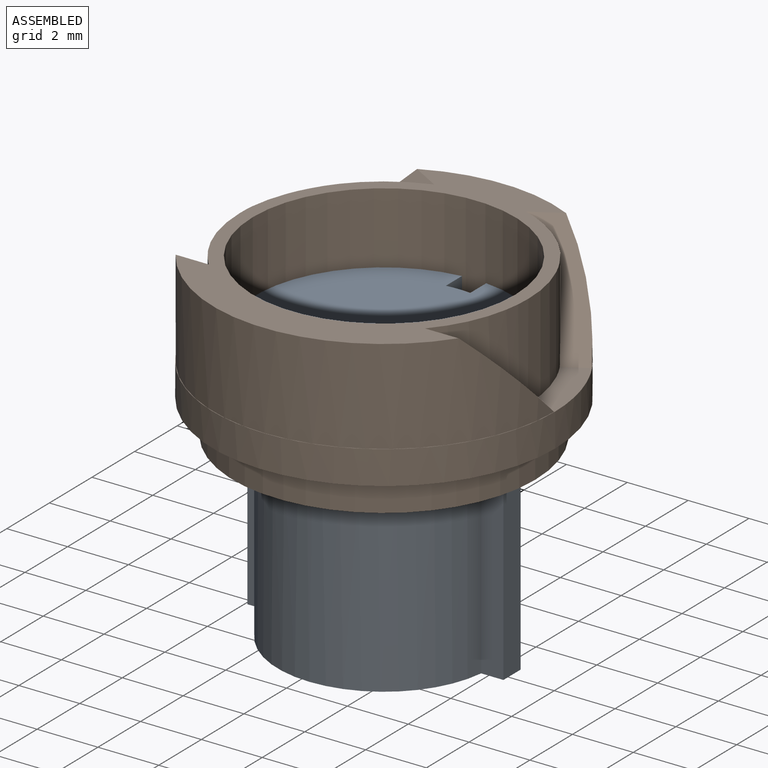
[diagram: assembled view]
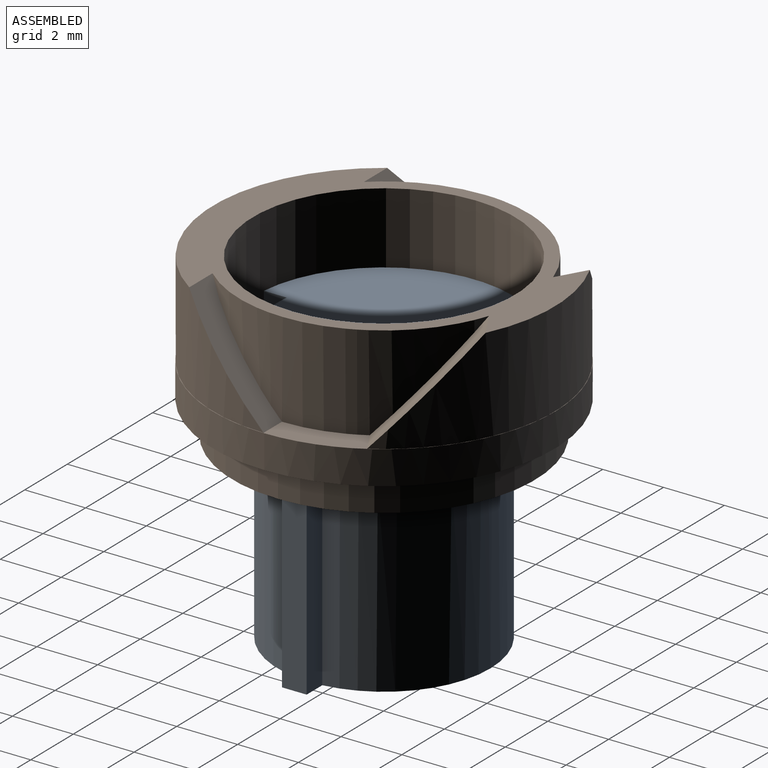
[diagram: assembled view, second angle]
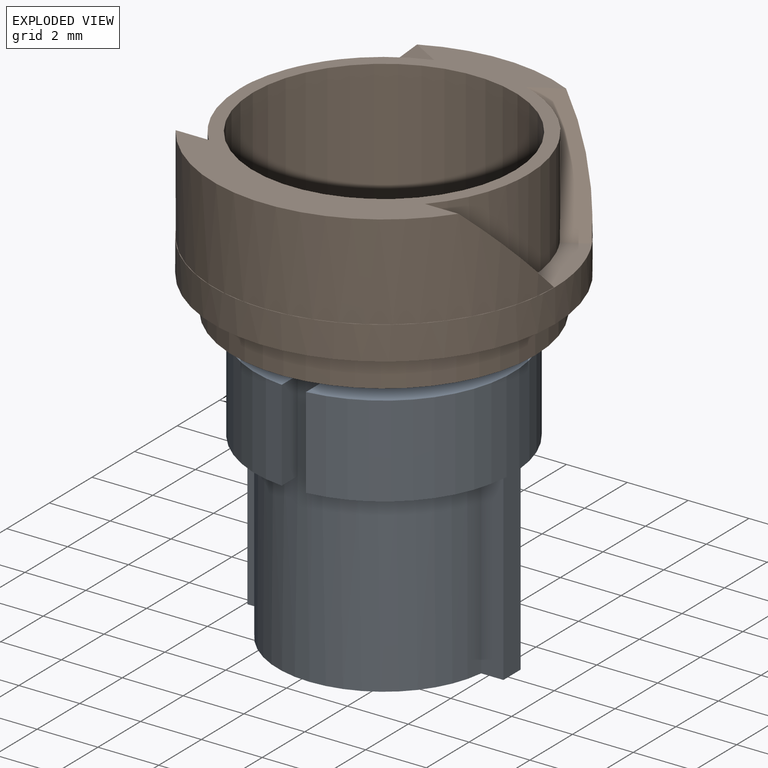
[diagram: exploded view]
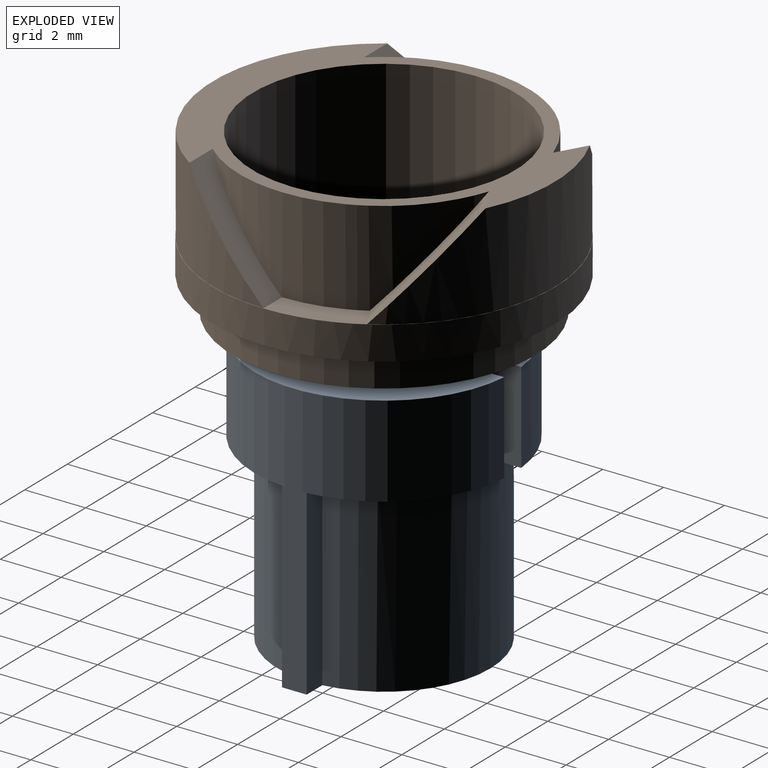
[diagram: exploded view, second angle]
ASSEMBLY  parts=2 mates=2
PART A: 18 faces, bbox 8.5x8.5x9 mm
  f0: plane 8.46x3.85mm, normal (0,0,1), area 7.9mm2, adj f1,f3,f6,f8,f11,f15,f16,f17
  f1: cylinder r=3.5mm len=9mm, axis (0,0,-1), area 63.5mm2, adj f0,f2,f5,f7,f8,f9,f12,f15
  f2: plane 8.46x3.85mm, normal (0,0,1), area 7.9mm2, adj f1,f4,f6,f9,f10,f12,f13,f14
  f3: cylinder r=4.25mm len=8.46mm, axis (0,0,-1), area 37.7mm2, adj f0,f5,f8,f11
  f4: cylinder r=4.25mm len=8.46mm, axis (0,0,-1), area 37.7mm2, adj f2,f5,f9,f10
  f5: plane 8.5x8.46mm, normal (0,0,-1), area 55.5mm2, adj f1,f3,f4,f6,f8,f9,f10,f11
  f6: cylinder r=3.5mm len=9mm, axis (0,0,-1), area 63.5mm2, adj f0,f2,f5,f7,f10,f11,f13,f16
  f7: plane 8.42x7mm, normal (0,0,1), area 39.6mm2, adj f1,f6,f12,f13,f14,f15,f16,f17
  f8: plane 3x0.75mm, normal (0,-1,0), area 2.3mm2, adj f0,f1,f3,f5
  f9: plane 3x0.75mm, normal (0,1,0), area 2.3mm2, adj f1,f2,f4,f5
  f10: plane 3x0.75mm, normal (0,1,0), area 2.3mm2, adj f2,f4,f5,f6
  f11: plane 3x0.75mm, normal (0,-1,0), area 2.3mm2, adj f0,f3,f5,f6
  f12: plane 6x0.73mm, normal (-1,0,0), area 4.4mm2, adj f1,f2,f7,f14
  f13: plane 6x0.73mm, normal (1,0,0), area 4.4mm2, adj f2,f6,f7,f14
  f14: plane 6x0.81mm, normal (0,-1,0), area 4.9mm2, adj f2,f7,f12,f13
  f15: plane 6x0.73mm, normal (-1,0,0), area 4.4mm2, adj f0,f1,f7,f17
  f16: plane 6x0.73mm, normal (1,0,0), area 4.4mm2, adj f0,f6,f7,f17
  f17: plane 6x0.81mm, normal (0,1,0), area 4.9mm2, adj f0,f7,f15,f16
PART B: 17 faces, bbox 11.4x11.4x5.5 mm
  f0: cylinder r=4.75mm len=7.66mm, axis (0,0,-1), area 18.1mm2, adj f1,f4,f13,f16
  f1: plane 11.26x11.26mm, normal (0,0,1), area 5.2mm2, adj f0,f2,f6,f11,f12,f13,f14,f15
  f2: cylinder r=4.75mm len=7.66mm, axis (0,0,-1), area 18.1mm2, adj f1,f4,f14,f15
  f3: cylinder r=4.32mm len=8.63mm, axis (0,0,-1), area 114.4mm2, adj f4,f10
  f4: plane 11.26x9.68mm, normal (0,0,1), area 24.2mm2, adj f0,f2,f3,f11,f12,f13,f14,f15
  f5: plane 11.25x11.25mm, normal (0,0,-1), area 21.6mm2, adj f6,f8
  f6: cylinder r=5.62mm len=11.25mm, axis (0,0,-1), area 38.9mm2, adj f1,f5
  f7: cylinder r=4.3mm len=8.6mm, axis (0,0,1), area 29.7mm2, adj f9,f10
  f8: cylinder r=4.98mm len=9.95mm, axis (0,0,1), area 34.4mm2, adj f5,f9
  f9: plane 9.95x9.95mm, normal (0,0,-1), area 19.7mm2, adj f7,f8
  f10: plane 8.63x8.63mm, normal (0,0,1), area 0.4mm2, adj f3,f7
  f11: cylinder r=5.61mm len=11.23mm, axis (0,0,-1), area 44.5mm2, adj f1,f4,f13,f14
  f12: cylinder r=5.61mm len=9.69mm, axis (0,0,-1), area 26.2mm2, adj f1,f4,f15,f16
  f13: plane 3.27x3.27mm, normal (0,0.71,0.71), area 4.1mm2, adj f0,f1,f4,f11
  f14: plane 3.27x3.27mm, normal (0,0.71,0.71), area 4.1mm2, adj f1,f2,f4,f11
  f15: plane 3.49x3.27mm, normal (-0.35,-0.61,0.71), area 4.1mm2, adj f1,f2,f4,f12
  f16: plane 3.49x3.27mm, normal (0.35,-0.61,0.71), area 4.1mm2, adj f0,f1,f4,f12
PLACE A rot(axis=(0.71,-0.71,0),180deg) t=(10.64,3.66,21.06)mm
PLACE B t=(10.64,3.66,19.16)mm
MATE cylindrical B.f12 <-> A.f3  axis (0,0,-1) through (10.64,3.66,18.06)mm
MATE parallel A.f3 <-> B.f12  axis (0,0,-1) through (10.64,3.66,18.06)mm
